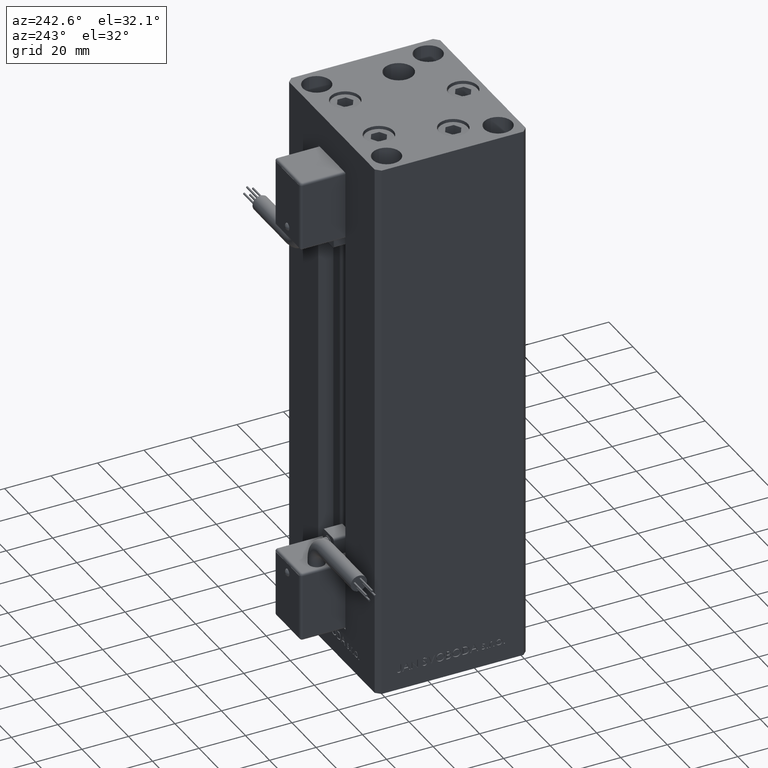
[diagram: clean part render]
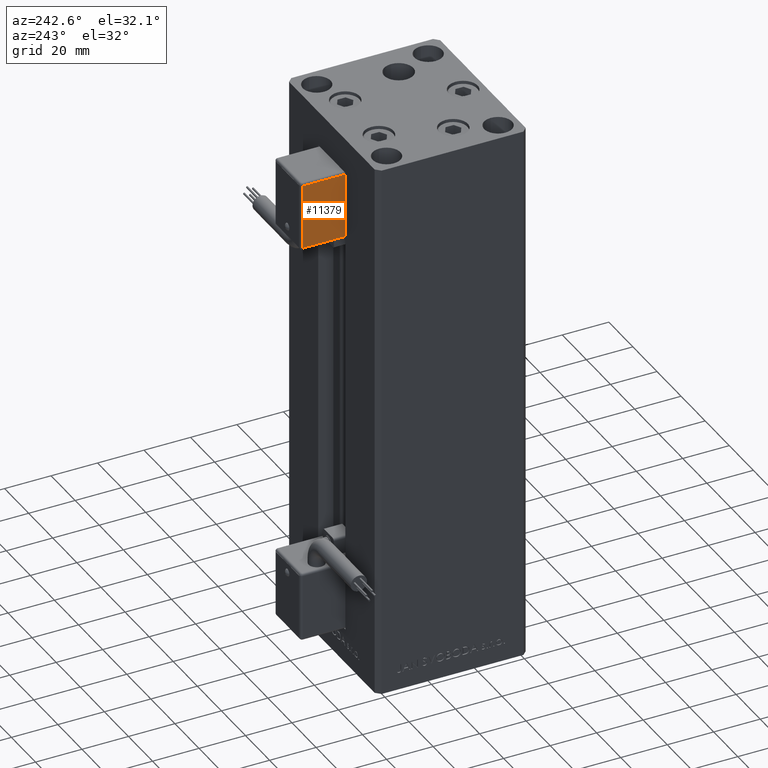
[diagram: same view with one face highlighted and labeled with its STEP entity id]
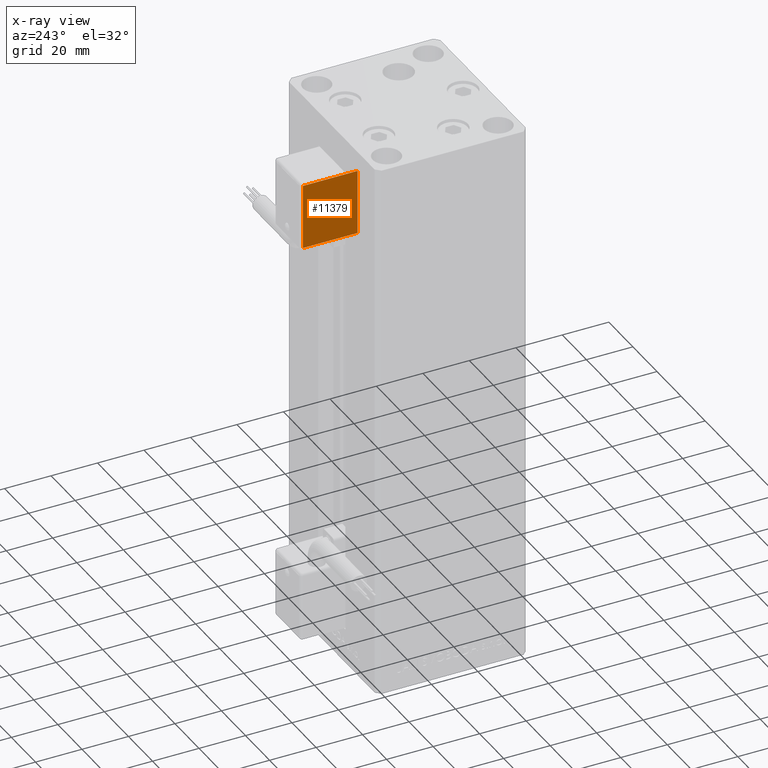
[diagram: x-ray of the same camera — body ghosted, the highlighted face saturated]
A machine part, auxiliary view. The second image highlights one B-rep face of the part: STEP entity #11379.
The next image is the same camera in x-ray: the body ghosted, the highlighted face saturated — about 0% of this face is hidden behind the body in this view.
In plain terms, the highlighted planar face has unit normal (1, 0, 0).
Its self-contained STEP definition (entity closure, byte-faithful):
#31 = ORIENTED_EDGE ( 'NONE', *, *, #48005, .T. ) ;
#2403 = CARTESIAN_POINT ( 'NONE',  ( -10.80000000000000071, 27.00000000000000000, -55.00000000000000000 ) ) ;
#5002 = DIRECTION ( 'NONE',  ( 2.220446049250000002E-16, 1.200000000000000024E-16, -1.000000000000000000 ) ) ;
#5240 = VECTOR ( 'NONE', #31581, 1000.000000000000000 ) ;
#8998 = DIRECTION ( 'NONE',  ( 0.000000000000000000, -2.220446049250000002E-16, 1.000000000000000000 ) ) ;
#10881 = CARTESIAN_POINT ( 'NONE',  ( -10.80000000000000071, 27.00000000000000000, -54.00000000000000000 ) ) ;
#11379 = ADVANCED_FACE ( 'NONE', ( #16924 ), #33038, .F. ) ;
#11462 = EDGE_CURVE ( 'NONE', #28848, #36405, #41739, .T. ) ;
#12959 = DIRECTION ( 'NONE',  ( 1.000000000000000000, 4.930380657629929601E-32, 1.094764425253299406E-47 ) ) ;
#16257 = CARTESIAN_POINT ( 'NONE',  ( -10.80000000000000071, 27.00000000000000000, -26.00000000000000000 ) ) ;
#16924 = FACE_OUTER_BOUND ( 'NONE', #28411, .T. ) ;
#18448 = DIRECTION ( 'NONE',  ( 3.108624468950000014E-32, -1.000000000000000000, -1.400000000000000069E-16 ) ) ;
#19123 = EDGE_CURVE ( 'NONE', #36405, #27372, #50532, .T. ) ;
#21116 = VERTEX_POINT ( 'NONE', #47941 ) ;
#24214 = VECTOR ( 'NONE', #34654, 1000.000000000000000 ) ;
#25333 = LINE ( 'NONE', #41211, #45756 ) ;
#27372 = VERTEX_POINT ( 'NONE', #16257 ) ;
#28411 = EDGE_LOOP ( 'NONE', ( #30372, #31, #49123, #41100 ) ) ;
#28848 = VERTEX_POINT ( 'NONE', #51839 ) ;
#30372 = ORIENTED_EDGE ( 'NONE', *, *, #48522, .T. ) ;
#30874 = CARTESIAN_POINT ( 'NONE',  ( -10.80000000000000071, 26.00000000000000000, -54.00000000000000000 ) ) ;
#31049 = CARTESIAN_POINT ( 'NONE',  ( -10.80000000000000071, 26.00000000000000000, -26.00000000000000000 ) ) ;
#31581 = DIRECTION ( 'NONE',  ( -3.108624468950000014E-32, 1.000000000000000000, 1.400000000000000069E-16 ) ) ;
#33038 = PLANE ( 'NONE',  #51780 ) ;
#34654 = DIRECTION ( 'NONE',  ( -2.220446049250000002E-16, -1.200000000000000024E-16, 1.000000000000000000 ) ) ;
#35540 = LINE ( 'NONE', #31049, #5240 ) ;
#36405 = VERTEX_POINT ( 'NONE', #10881 ) ;
#41100 = ORIENTED_EDGE ( 'NONE', *, *, #19123, .T. ) ;
#41211 = CARTESIAN_POINT ( 'NONE',  ( -10.80000000000000071, 50.50000000000000000, -55.00000000000000000 ) ) ;
#41739 = LINE ( 'NONE', #30874, #50925 ) ;
#45756 = VECTOR ( 'NONE', #5002, 1000.000000000000000 ) ;
#47941 = CARTESIAN_POINT ( 'NONE',  ( -10.80000000000000071, 50.50000000000000000, -26.00000000000000000 ) ) ;
#48005 = EDGE_CURVE ( 'NONE', #21116, #28848, #25333, .T. ) ;
#48522 = EDGE_CURVE ( 'NONE', #27372, #21116, #35540, .T. ) ;
#49123 = ORIENTED_EDGE ( 'NONE', *, *, #11462, .T. ) ;
#49177 = CARTESIAN_POINT ( 'NONE',  ( -10.80000000000000071, 26.00000000000000000, -55.00000000000000000 ) ) ;
#50532 = LINE ( 'NONE', #2403, #24214 ) ;
#50925 = VECTOR ( 'NONE', #18448, 1000.000000000000000 ) ;
#51780 = AXIS2_PLACEMENT_3D ( 'NONE', #49177, #12959, #8998 ) ;
#51839 = CARTESIAN_POINT ( 'NONE',  ( -10.80000000000000071, 50.50000000000000000, -54.00000000000000000 ) ) ;